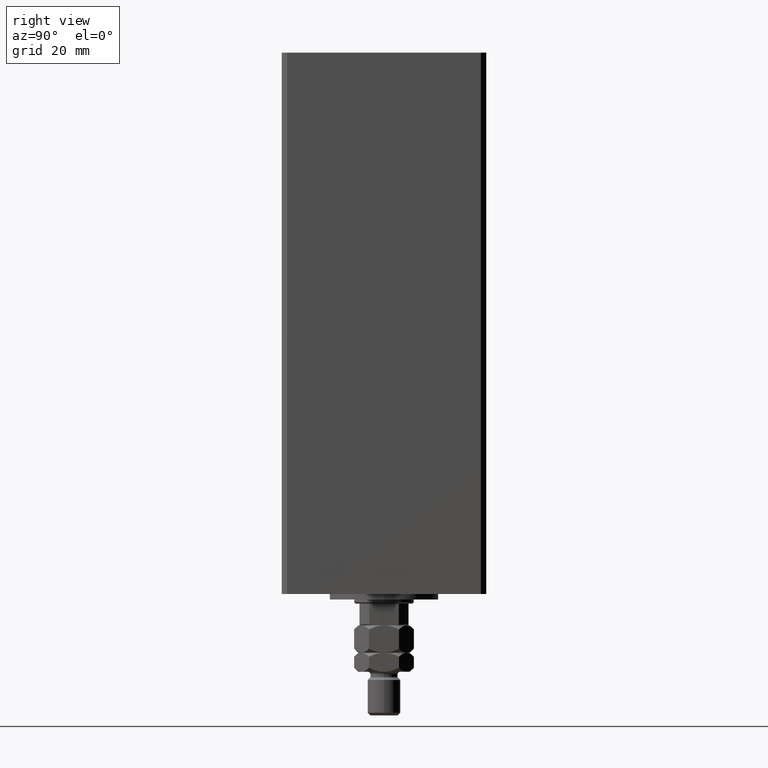
[diagram: clean part render]
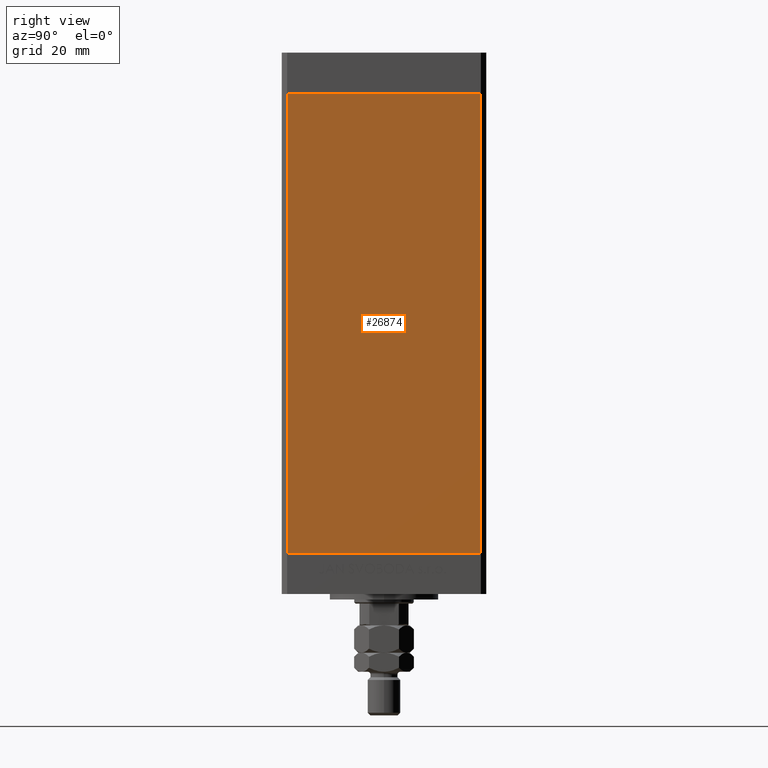
[diagram: same view with one face highlighted and labeled with its STEP entity id]
A machine part, right view. The second image highlights one B-rep face of the part: STEP entity #26874.
In plain terms, the highlighted planar face has unit normal (1, -0, 0).
Its self-contained STEP definition (entity closure, byte-faithful):
#4073 = VERTEX_POINT ( 'NONE', #40229 ) ;
#4490 = AXIS2_PLACEMENT_3D ( 'NONE', #41554, #26455, #15201 ) ;
#5025 = EDGE_CURVE ( 'NONE', #39135, #24529, #12704, .T. ) ;
#6404 = DIRECTION ( 'NONE',  ( -2.931927001650941360E-16, -1.000000000000000000, 0.000000000000000000 ) ) ;
#8801 = VECTOR ( 'NONE', #39453, 1000.000000000000000 ) ;
#8946 = VECTOR ( 'NONE', #21564, 1000.000000000000000 ) ;
#9813 = LINE ( 'NONE', #40992, #8946 ) ;
#9953 = ORIENTED_EDGE ( 'NONE', *, *, #32774, .F. ) ;
#12704 = LINE ( 'NONE', #19871, #34700 ) ;
#13004 = EDGE_LOOP ( 'NONE', ( #9953, #41017, #14824, #14227 ) ) ;
#14227 = ORIENTED_EDGE ( 'NONE', *, *, #5025, .T. ) ;
#14824 = ORIENTED_EDGE ( 'NONE', *, *, #46886, .T. ) ;
#15201 = DIRECTION ( 'NONE',  ( 2.931927001650941360E-16, 1.000000000000000000, 0.000000000000000000 ) ) ;
#16747 = CARTESIAN_POINT ( 'NONE',  ( 42.49999999999998579, -35.50000000000000711, 168.5000000000000000 ) ) ;
#19871 = CARTESIAN_POINT ( 'NONE',  ( 42.49999999999998579, -35.50000000000000711, 168.5000000000000000 ) ) ;
#21564 = DIRECTION ( 'NONE',  ( -0.000000000000000000, -0.000000000000000000, -1.000000000000000000 ) ) ;
#24529 = VERTEX_POINT ( 'NONE', #49759 ) ;
#26317 = CARTESIAN_POINT ( 'NONE',  ( 42.50000000000000711, 35.50000000000001421, 168.5000000000000000 ) ) ;
#26455 = DIRECTION ( 'NONE',  ( 1.000000000000000000, -2.931927001650941360E-16, 0.000000000000000000 ) ) ;
#26874 = ADVANCED_FACE ( 'NONE', ( #38211 ), #26964, .T. ) ;
#26964 = PLANE ( 'NONE',  #4490 ) ;
#27467 = LINE ( 'NONE', #43029, #8801 ) ;
#32774 = EDGE_CURVE ( 'NONE', #44712, #24529, #27467, .T. ) ;
#34700 = VECTOR ( 'NONE', #43613, 1000.000000000000000 ) ;
#38211 = FACE_OUTER_BOUND ( 'NONE', #13004, .T. ) ;
#39135 = VERTEX_POINT ( 'NONE', #16747 ) ;
#39453 = DIRECTION ( 'NONE',  ( -2.931927001650941360E-16, -1.000000000000000000, 0.000000000000000000 ) ) ;
#40229 = CARTESIAN_POINT ( 'NONE',  ( 42.50000000000000711, 35.50000000000001421, 168.5000000000000000 ) ) ;
#40992 = CARTESIAN_POINT ( 'NONE',  ( 42.50000000000000711, 35.50000000000001421, 168.5000000000000000 ) ) ;
#41017 = ORIENTED_EDGE ( 'NONE', *, *, #41497, .F. ) ;
#41401 = LINE ( 'NONE', #26317, #42603 ) ;
#41497 = EDGE_CURVE ( 'NONE', #4073, #44712, #9813, .T. ) ;
#41554 = CARTESIAN_POINT ( 'NONE',  ( 42.50000000000000711, 35.50000000000001421, 168.5000000000000000 ) ) ;
#42603 = VECTOR ( 'NONE', #6404, 1000.000000000000000 ) ;
#43029 = CARTESIAN_POINT ( 'NONE',  ( 42.50000000000000711, 35.50000000000001421, 0.000000000000000000 ) ) ;
#43613 = DIRECTION ( 'NONE',  ( -0.000000000000000000, -0.000000000000000000, -1.000000000000000000 ) ) ;
#44712 = VERTEX_POINT ( 'NONE', #45572 ) ;
#45572 = CARTESIAN_POINT ( 'NONE',  ( 42.50000000000000711, 35.50000000000001421, 0.000000000000000000 ) ) ;
#46886 = EDGE_CURVE ( 'NONE', #4073, #39135, #41401, .T. ) ;
#49759 = CARTESIAN_POINT ( 'NONE',  ( 42.49999999999998579, -35.50000000000000711, 0.000000000000000000 ) ) ;